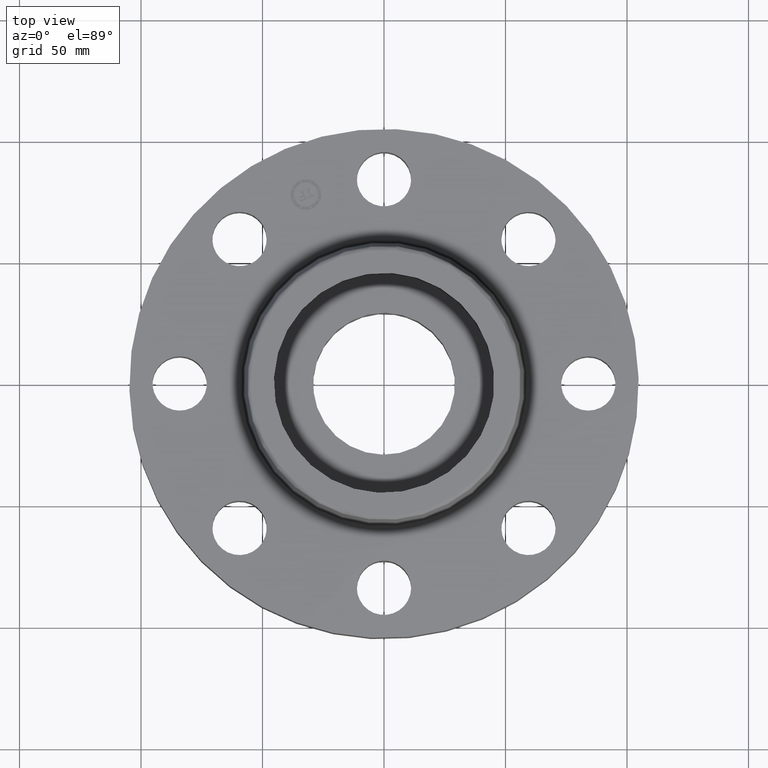
[diagram: clean part render]
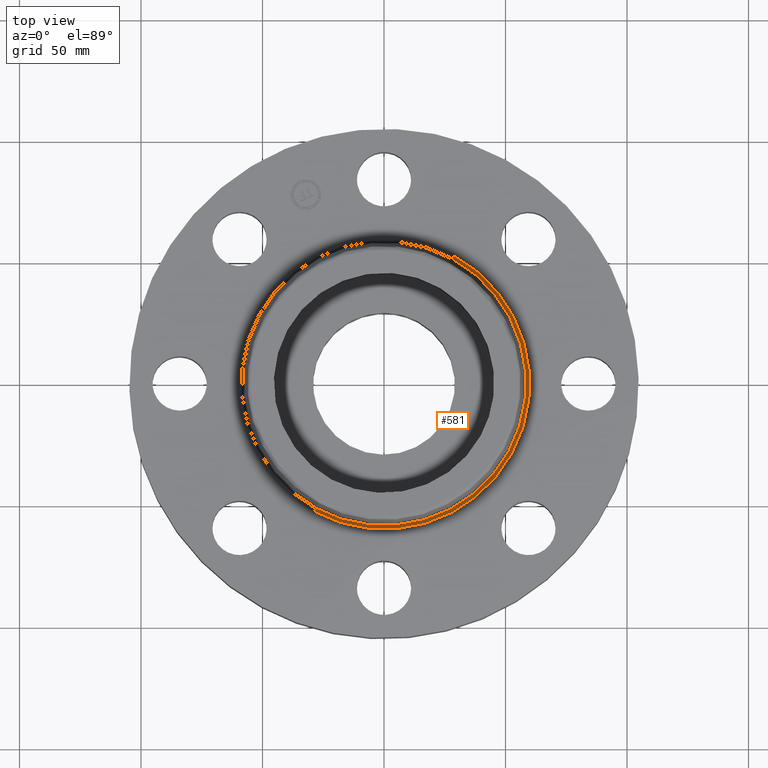
[diagram: same view with one face highlighted and labeled with its STEP entity id]
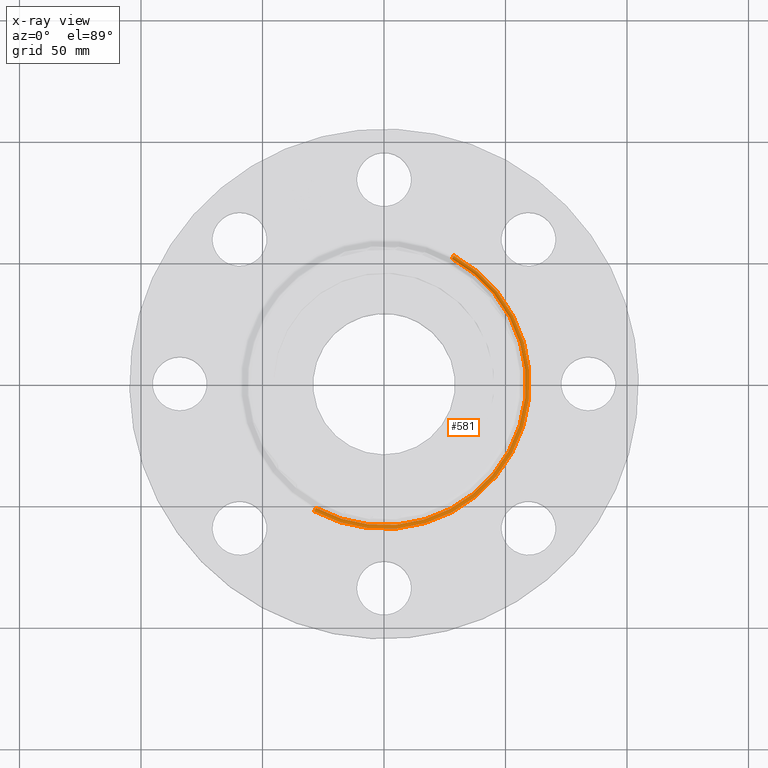
[diagram: x-ray of the same camera — body ghosted, the highlighted face saturated]
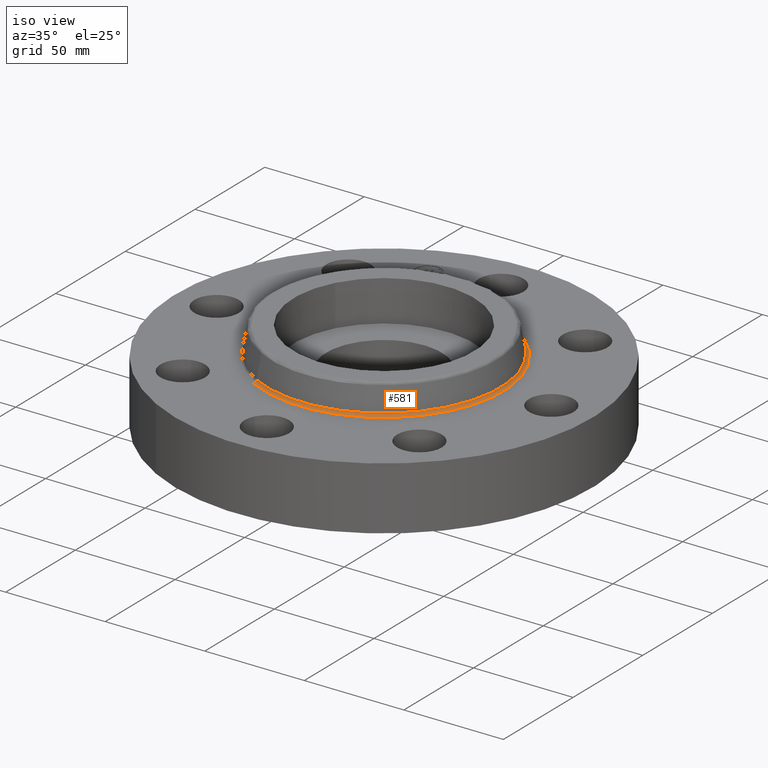
[diagram: same view with one face highlighted and labeled with its STEP entity id]
A machine part, top view. The second image highlights one B-rep face of the part: STEP entity #581.
The next image is the same camera in x-ray: the body ghosted, the highlighted face saturated — about 0% of this face is hidden behind the body in this view.
A second angle (iso view) of the same face is appended — the face is thin or edge-on in the first view.
In plain terms, the highlighted toroidal blend (fillet) surface has major radius 59.9528 mm and minor (blend) radius 1.524 mm.
Its self-contained STEP definition (entity closure, byte-faithful):
#434=AXIS2_PLACEMENT_3D('Circle Axis2P3D',#432,#433,$) ;
#554=AXIS2_PLACEMENT_3D('Torus Axis2P3D',#551,#552,#553) ;
#558=AXIS2_PLACEMENT_3D('Circle Axis2P3D',#556,#557,$) ;
#567=AXIS2_PLACEMENT_3D('Circle Axis2P3D',#565,#566,$) ;
#572=AXIS2_PLACEMENT_3D('Circle Axis2P3D',#570,#571,$) ;
#432=CARTESIAN_POINT('Axis2P3D Location',(0.,0.,1.29958110935)) ;
#436=CARTESIAN_POINT('Vertex',(1.10328162249,2.01954346356,1.29958110935)) ;
#438=CARTESIAN_POINT('Vertex',(-1.10328162249,-2.01954346356,1.29958110935)) ;
#551=CARTESIAN_POINT('Axis2P3D Location',(0.,0.,1.31000000001)) ;
#556=CARTESIAN_POINT('Axis2P3D Location',(0.,0.,1.25000000001)) ;
#560=CARTESIAN_POINT('Vertex',(1.13161014174,2.07139847022,1.25000000001)) ;
#562=CARTESIAN_POINT('Vertex',(-1.13161014174,-2.07139847022,1.25000000001)) ;
#565=CARTESIAN_POINT('Axis2P3D Location',(1.13161014174,2.07139847022,1.31000000001)) ;
#570=CARTESIAN_POINT('Axis2P3D Location',(-1.13161014174,-2.07139847022,1.31000000001)) ;
#433=DIRECTION('Axis2P3D Direction',(-0.,0.,-0.0393700787402)) ;
#552=DIRECTION('Axis2P3D Direction',(0.,0.,-0.0393700787402)) ;
#553=DIRECTION('Axis2P3D XDirection',(0.0188750212049,0.0345504945626,0.)) ;
#557=DIRECTION('Axis2P3D Direction',(-0.,0.,-0.0393700787402)) ;
#566=DIRECTION('Axis2P3D Direction',(-0.0345504945626,0.0188750212049,0.)) ;
#571=DIRECTION('Axis2P3D Direction',(0.0345504945626,-0.0188750212049,0.)) ;
#576=ORIENTED_EDGE('',*,*,#564,.F.) ;
#577=ORIENTED_EDGE('',*,*,#569,.T.) ;
#578=ORIENTED_EDGE('',*,*,#440,.T.) ;
#579=ORIENTED_EDGE('',*,*,#574,.F.) ;
#581=ADVANCED_FACE('PartBody',(#580),#555,.F.) ;
#435=CIRCLE('generated circle',#434,2.3012575127) ;
#559=CIRCLE('generated circle',#558,2.36034597788) ;
#568=CIRCLE('generated circle',#567,0.0600000000002) ;
#573=CIRCLE('generated circle',#572,0.0600000000002) ;
#555=TOROIDAL_SURFACE('homeo Torus',#554,2.36034597788,0.0600000000002) ;
#440=EDGE_CURVE('',#437,#439,#435,.T.) ;
#564=EDGE_CURVE('',#561,#563,#559,.T.) ;
#569=EDGE_CURVE('',#561,#437,#568,.T.) ;
#574=EDGE_CURVE('',#563,#439,#573,.T.) ;
#575=EDGE_LOOP('',(#576,#577,#578,#579)) ;
#580=FACE_OUTER_BOUND('',#575,.T.) ;
#437=VERTEX_POINT('',#436) ;
#439=VERTEX_POINT('',#438) ;
#561=VERTEX_POINT('',#560) ;
#563=VERTEX_POINT('',#562) ;